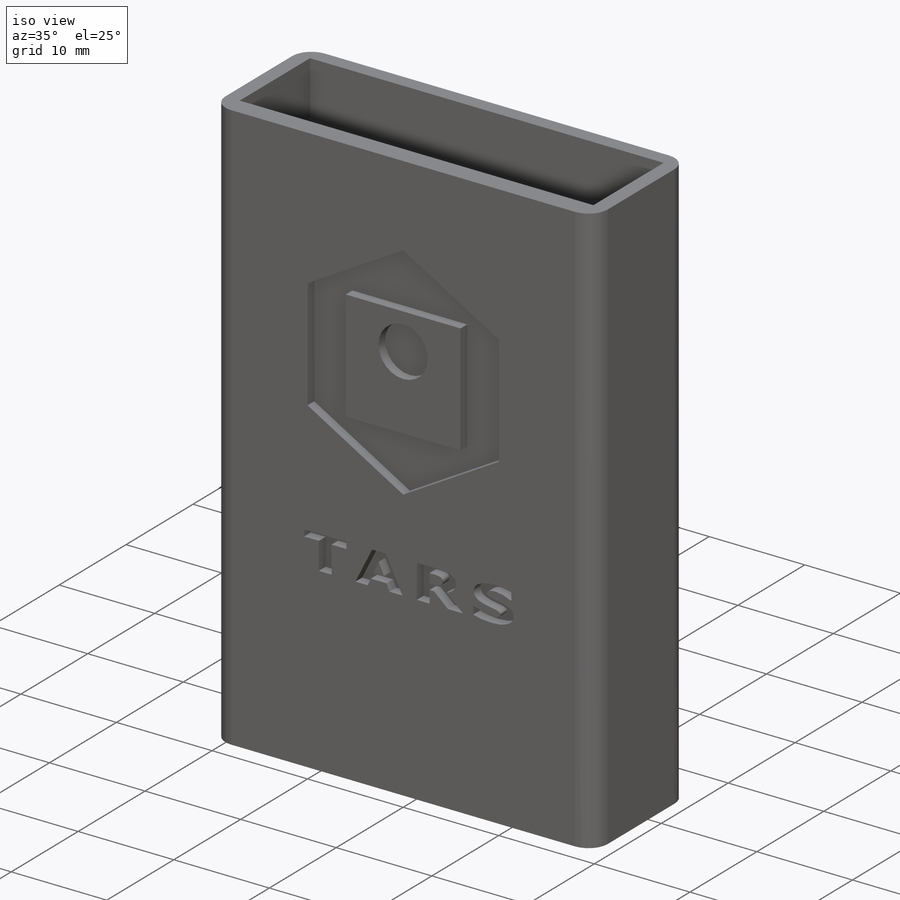
[diagram: iso view]
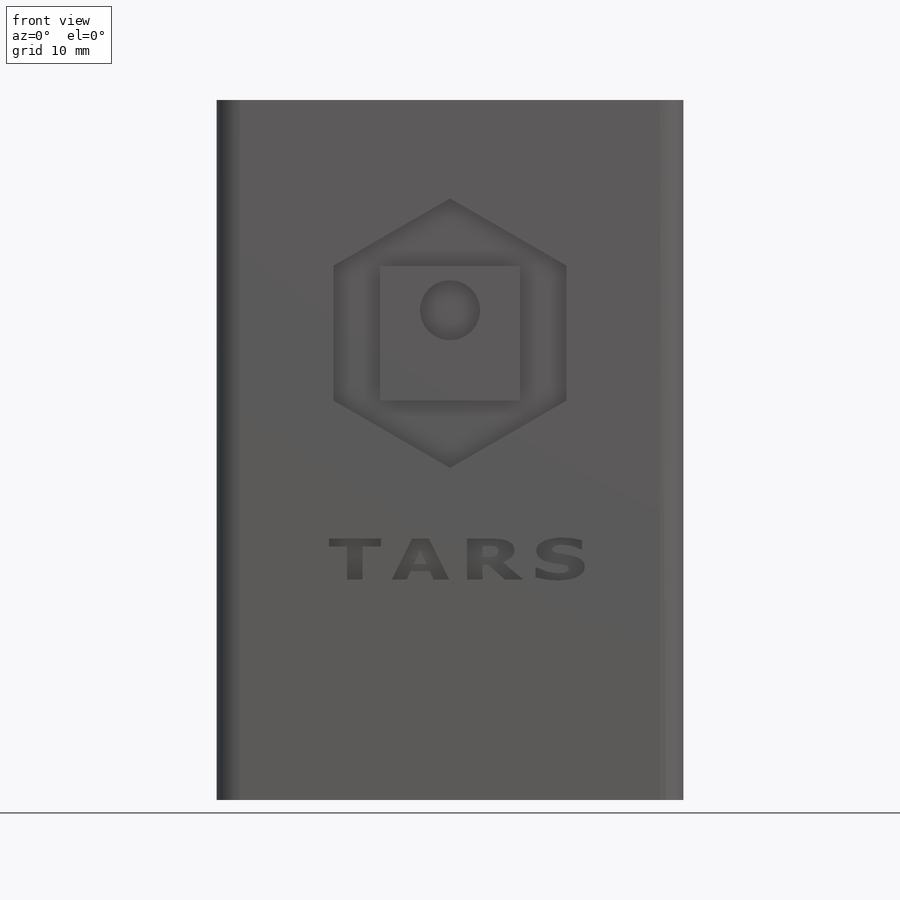
[diagram: front view]
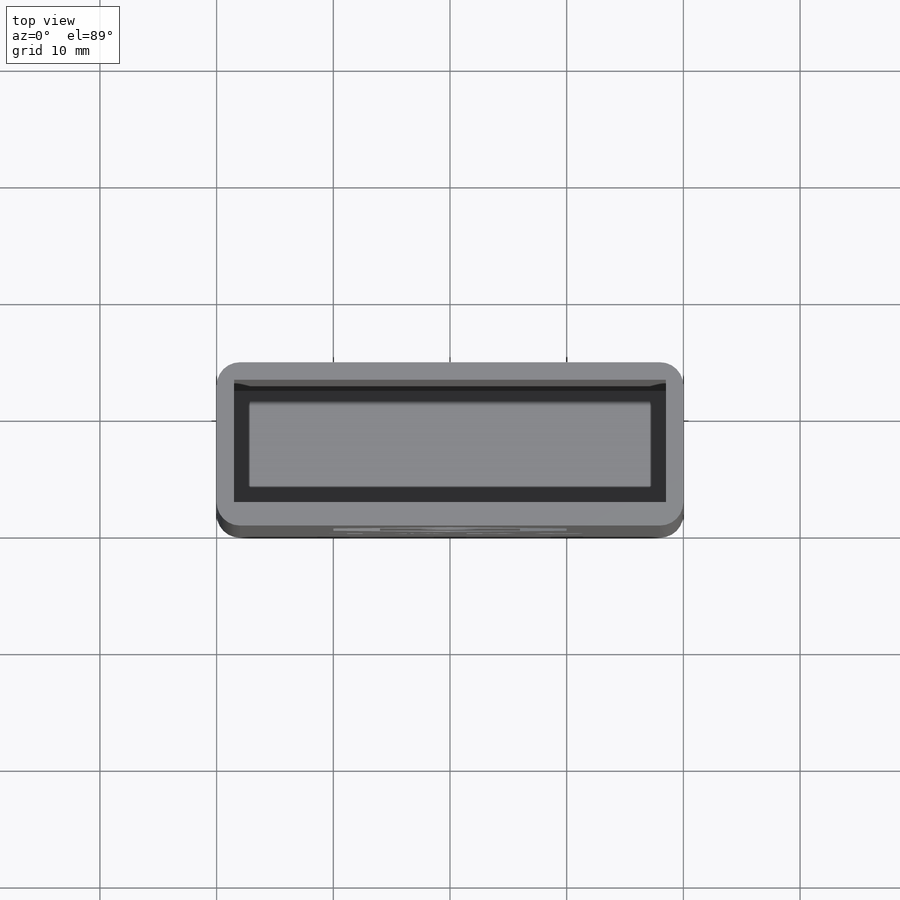
[diagram: top view]
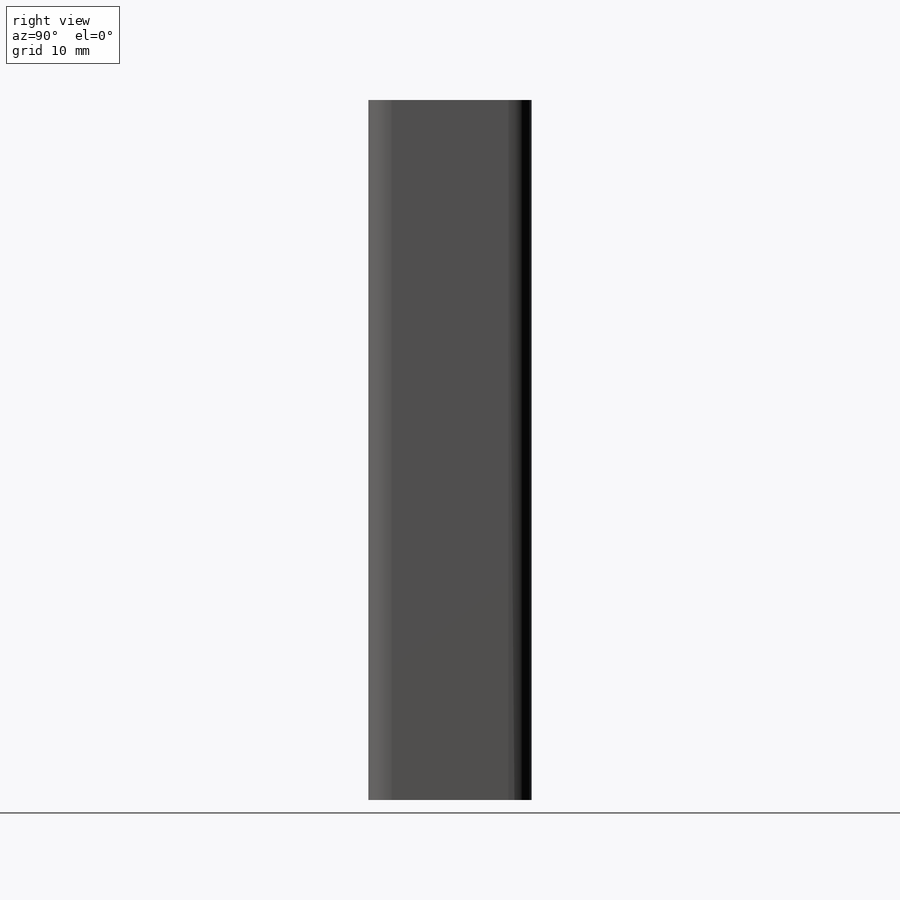
[diagram: right view]
SOLIDWORKS PART (.sldprt)
format: sldprt  version: not decoded by parser v0  size: 665,088 bytes
history: native  units: mm
features: sketch x5, cut_extrude x4, fillet x4, plane x3, material x1, extrude x1 (+10 scaffold rows collapsed)
feature tree (28):
  scaffold x10  (default folders/planes/origin — collapsed)
  material  "材质 <未指定>"
  plane  "前视基准面"
  plane  "上视基准面"
  plane  "右视基准面"
  sketch  "草图1"
  extrude  "凸台-拉伸1"  Depth=60mm
  sketch  "草图3"
  sketch  "草图5"
  cut_extrude  "切除-拉伸8"  Depth=2mm
  sketch  "草图6"  dims[D1=~29.427456deg]
  cut_extrude  "切除-拉伸9"  Depth=1mm
  cut_extrude  "切除-拉伸10"  Depth=55mm
  fillet  "圆角3"  Radius=2mm
  fillet  "圆角14"  Radius=2mm
  fillet  "圆角15"  Radius=2mm
  fillet  "圆角16"  Radius=2mm
  sketch  "草图8"
  cut_extrude  "切除-拉伸11"  Depth=1mm
decode coverage: 10 of 14 modeling features carry decoded parameters
note: ~ marks probable driven/reference dimensions
note: suppression state not decoded; provenance and decode notes live in map.json
